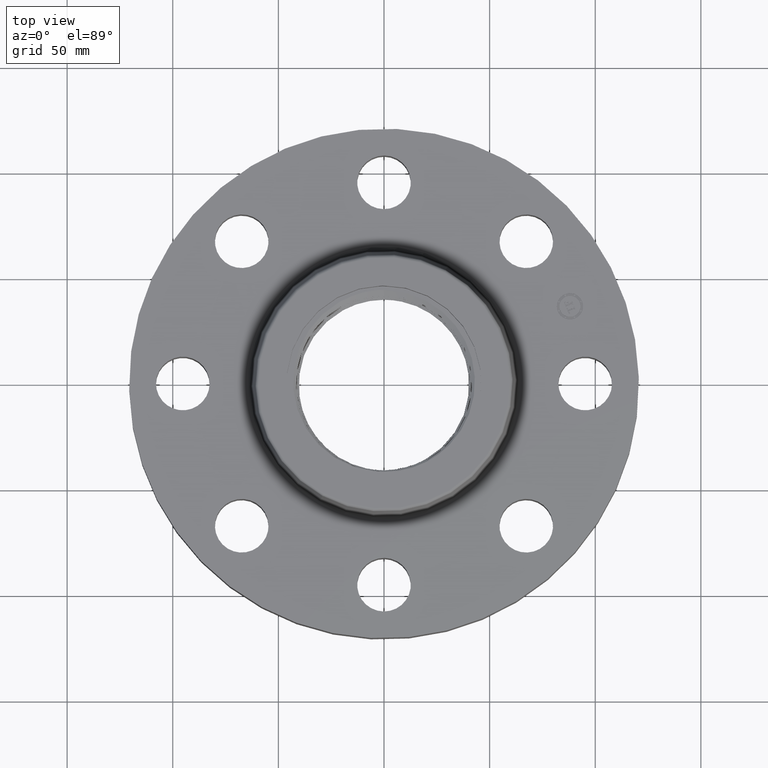
[diagram: clean part render]
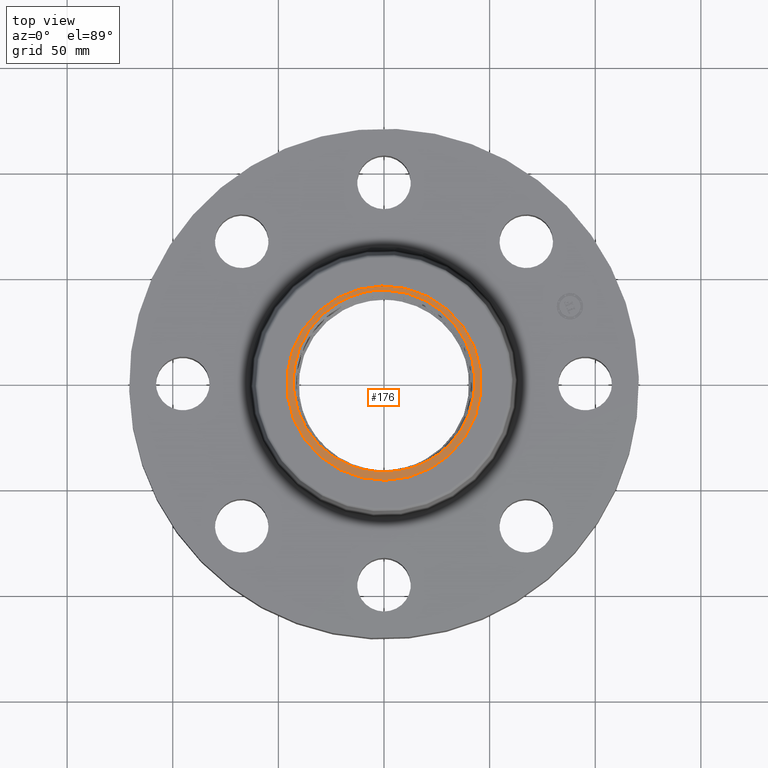
[diagram: same view with one face highlighted and labeled with its STEP entity id]
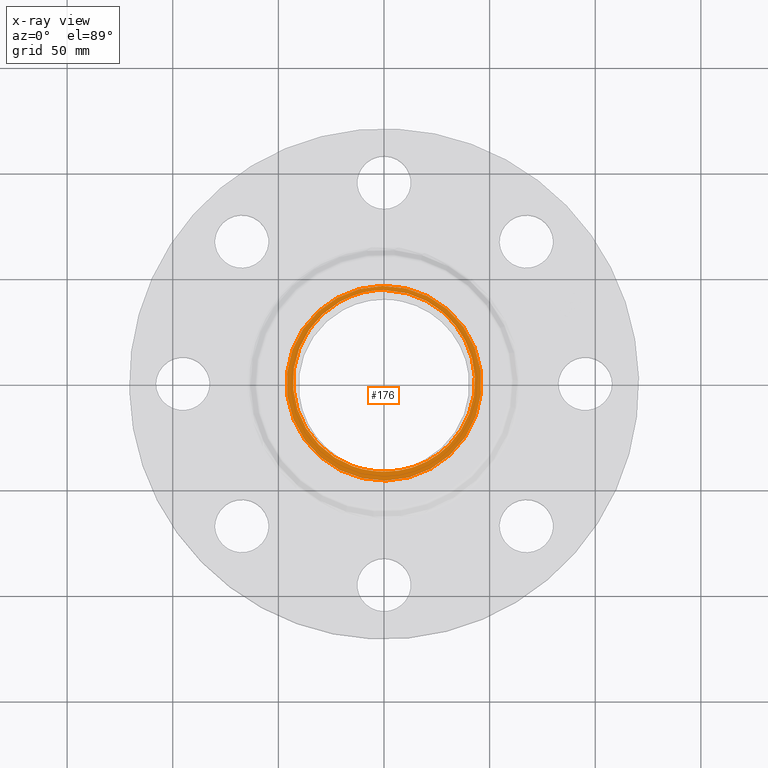
[diagram: x-ray of the same camera — body ghosted, the highlighted face saturated]
A machine part, top view. The second image highlights one B-rep face of the part: STEP entity #176.
The next image is the same camera in x-ray: the body ghosted, the highlighted face saturated — about 0% of this face is hidden behind the body in this view.
In plain terms, the highlighted planar face has unit normal (0, 0, 1).
Its self-contained STEP definition (entity closure, byte-faithful):
#38=AXIS2_PLACEMENT_3D('Plane Axis2P3D',#35,#36,#37) ;
#42=AXIS2_PLACEMENT_3D('Circle Axis2P3D',#40,#41,$) ;
#51=AXIS2_PLACEMENT_3D('Circle Axis2P3D',#49,#50,$) ;
#60=AXIS2_PLACEMENT_3D('Circle Axis2P3D',#58,#59,$) ;
#35=CARTESIAN_POINT('Axis2P3D Location',(7.36069123413E-016,-4.96540691328E-016,1.62000000001)) ;
#40=CARTESIAN_POINT('Axis2P3D Location',(0.,0.,1.62000000001)) ;
#44=CARTESIAN_POINT('Vertex',(-0.87015735257,1.59281234984,1.62000000001)) ;
#46=CARTESIAN_POINT('Vertex',(0.87015735257,-1.59281234984,1.62000000001)) ;
#49=CARTESIAN_POINT('Axis2P3D Location',(0.,0.,1.62000000001)) ;
#58=CARTESIAN_POINT('Axis2P3D Location',(-2.43025197516E-016,-6.99353086378E-018,1.62000000001)) ;
#62=CARTESIAN_POINT('Vertex',(-0.19496198795,-1.63393585747,1.62)) ;
#64=CARTESIAN_POINT('Vertex',(-0.0561135970557,-1.64456919201,1.62000000001)) ;
#68=CARTESIAN_POINT('Control Point',(-0.829470934367,1.51833945289,1.62000000001)) ;
#69=CARTESIAN_POINT('Control Point',(-0.947924557723,1.45061461579,1.62000000001)) ;
#70=CARTESIAN_POINT('Control Point',(-1.0595875807,1.37127483517,1.62000000001)) ;
#71=CARTESIAN_POINT('Control Point',(-1.16292713122,1.28121473761,1.62000000001)) ;
#72=CARTESIAN_POINT('Control Point',(-1.35026486209,1.08205836962,1.62000000001)) ;
#73=CARTESIAN_POINT('Control Point',(-1.4946473119,0.850494288011,1.62000000001)) ;
#74=CARTESIAN_POINT('Control Point',(-1.55503738021,0.728013477139,1.62000000001)) ;
#75=CARTESIAN_POINT('Control Point',(-1.62075184436,0.552652108539,1.62000000001)) ;
#76=CARTESIAN_POINT('Control Point',(-1.66181836953,0.370997993865,1.62000000001)) ;
#77=CARTESIAN_POINT('Control Point',(-1.67116108408,0.321082405756,1.62000000001)) ;
#78=CARTESIAN_POINT('Control Point',(-1.6985592854,0.136954971346,1.62000000001)) ;
#79=CARTESIAN_POINT('Control Point',(-1.70063676271,-0.0496898093333,1.62000000001)) ;
#80=CARTESIAN_POINT('Control Point',(-1.68857808116,-0.184969524677,1.62000000001)) ;
#81=CARTESIAN_POINT('Control Point',(-1.63768868326,-0.451093018365,1.62000000001)) ;
#82=CARTESIAN_POINT('Control Point',(-1.53542122403,-0.701241241832,1.62000000001)) ;
#83=CARTESIAN_POINT('Control Point',(-1.4719383001,-0.820690109152,1.62000000001)) ;
#84=CARTESIAN_POINT('Control Point',(-1.32207399694,-1.04505607616,1.62000000001)) ;
#85=CARTESIAN_POINT('Control Point',(-1.13105167273,-1.23480864744,1.62000000001)) ;
#86=CARTESIAN_POINT('Control Point',(-1.02637062099,-1.31968762362,1.62000000001)) ;
#87=CARTESIAN_POINT('Control Point',(-0.807776384829,-1.46303472352,1.62000000001)) ;
#88=CARTESIAN_POINT('Control Point',(-0.56601243572,-1.56102256941,1.62000000001)) ;
#89=CARTESIAN_POINT('Control Point',(-0.444441861337,-1.59722159542,1.62000000001)) ;
#90=CARTESIAN_POINT('Control Point',(-0.320242420734,-1.62157383624,1.62000000001)) ;
#91=CARTESIAN_POINT('Control Point',(-0.194961989016,-1.63393586934,1.62000000001)) ;
#92=CARTESIAN_POINT('Vertex',(-0.829470934367,1.51833945289,1.62000000001)) ;
#96=CARTESIAN_POINT('Control Point',(-0.13678562732,1.73890278617,1.62000000001)) ;
#97=CARTESIAN_POINT('Control Point',(-0.282853150829,1.72458252226,1.62000000001)) ;
#98=CARTESIAN_POINT('Control Point',(-0.42726701422,1.69491069776,1.62000000001)) ;
#99=CARTESIAN_POINT('Control Point',(-0.567879339145,1.65011614746,1.62000000001)) ;
#100=CARTESIAN_POINT('Control Point',(-0.702571780982,1.5908929489,1.62000000001)) ;
#101=CARTESIAN_POINT('Control Point',(-0.829470934367,1.51833945289,1.62000000001)) ;
#102=CARTESIAN_POINT('Vertex',(-0.13678562732,1.73890278617,1.62000000001)) ;
#106=CARTESIAN_POINT('Control Point',(-0.13678562732,1.73890278617,1.62000000001)) ;
#107=CARTESIAN_POINT('Control Point',(-0.109456901691,1.74057479163,1.62000000001)) ;
#108=CARTESIAN_POINT('Control Point',(-0.0820997627674,1.74171022496,1.62000000001)) ;
#109=CARTESIAN_POINT('Control Point',(-0.0547282599684,1.74230832851,1.62000000001)) ;
#110=CARTESIAN_POINT('Control Point',(-0.027356482558,1.74236889664,1.62000000001)) ;
#111=CARTESIAN_POINT('Control Point',(1.47383328884E-006,1.74189228094,1.62000000001)) ;
#112=CARTESIAN_POINT('Vertex',(1.47383328876E-006,1.74189228094,1.62000000001)) ;
#116=CARTESIAN_POINT('Control Point',(1.47383328852E-006,1.74189228094,1.62000000001)) ;
#117=CARTESIAN_POINT('Control Point',(0.136920630037,1.73950694876,1.62000000001)) ;
#118=CARTESIAN_POINT('Control Point',(0.273493783633,1.72366654291,1.62000000001)) ;
#119=CARTESIAN_POINT('Control Point',(0.40791608178,1.69442465365,1.62000000001)) ;
#120=CARTESIAN_POINT('Control Point',(0.669048518615,1.60992355655,1.62000000001)) ;
#121=CARTESIAN_POINT('Control Point',(0.908110509456,1.47634479306,1.62000000001)) ;
#122=CARTESIAN_POINT('Control Point',(1.02056626932,1.39797639738,1.62000000001)) ;
#123=CARTESIAN_POINT('Control Point',(1.22835452702,1.22021097868,1.62000000001)) ;
#124=CARTESIAN_POINT('Control Point',(1.39698895244,1.00557373108,1.62000000001)) ;
#125=CARTESIAN_POINT('Control Point',(1.47032958991,0.890288341322,1.62000000001)) ;
#126=CARTESIAN_POINT('Control Point',(1.59302963525,0.647002829546,1.62000000001)) ;
#127=CARTESIAN_POINT('Control Point',(1.66539294659,0.384673688532,1.62000000001)) ;
#128=CARTESIAN_POINT('Control Point',(1.68834854345,0.250460646832,1.62000000001)) ;
#129=CARTESIAN_POINT('Control Point',(1.70131672195,0.0641377363091,1.62000000001)) ;
#130=CARTESIAN_POINT('Control Point',(1.68884093795,-0.121274441179,1.62000000001)) ;
#131=CARTESIAN_POINT('Control Point',(1.68355250922,-0.171653829181,1.62000000001)) ;
#132=CARTESIAN_POINT('Control Point',(1.66683566121,-0.28858043342,1.62000000001)) ;
#133=CARTESIAN_POINT('Control Point',(1.63999666548,-0.403586111026,1.62000000001)) ;
#134=CARTESIAN_POINT('Control Point',(1.62139791982,-0.468446937411,1.62000000001)) ;
#135=CARTESIAN_POINT('Control Point',(1.55601180588,-0.659816996201,1.62000000001)) ;
#136=CARTESIAN_POINT('Control Point',(1.46260830856,-0.839719875841,1.62000000001)) ;
#137=CARTESIAN_POINT('Control Point',(1.38856391367,-0.952902958467,1.62000000001)) ;
#138=CARTESIAN_POINT('Control Point',(1.23849429043,-1.13854876627,1.62000000001)) ;
#139=CARTESIAN_POINT('Control Point',(1.058720283,-1.29430962591,1.62000000001)) ;
#140=CARTESIAN_POINT('Control Point',(0.975492430563,-1.3558236727,1.62000000001)) ;
#141=CARTESIAN_POINT('Control Point',(0.887898749646,-1.41061576939,1.62000000001)) ;
#142=CARTESIAN_POINT('Control Point',(0.796675761675,-1.4583093642,1.62000000001)) ;
#143=CARTESIAN_POINT('Vertex',(0.796675761675,-1.4583093642,1.62000000001)) ;
#147=CARTESIAN_POINT('Control Point',(0.796675761675,-1.4583093642,1.62000000001)) ;
#148=CARTESIAN_POINT('Control Point',(0.678982033357,-1.51984250506,1.62000000001)) ;
#149=CARTESIAN_POINT('Control Point',(0.555247140363,-1.56955989782,1.62000000001)) ;
#150=CARTESIAN_POINT('Control Point',(0.42704390767,-1.60665540787,1.62000000001)) ;
#151=CARTESIAN_POINT('Control Point',(0.263572078758,-1.63660367051,1.62000000001)) ;
#152=CARTESIAN_POINT('Control Point',(0.0986082677818,-1.64591803104,1.62000000001)) ;
#153=CARTESIAN_POINT('Control Point',(0.0657336206601,-1.64695259762,1.62000000001)) ;
#154=CARTESIAN_POINT('Control Point',(0.0328543485666,-1.64716671914,1.62000000001)) ;
#155=CARTESIAN_POINT('Control Point',(-2.22400057944E-006,-1.6465611539,1.62000000001)) ;
#156=CARTESIAN_POINT('Vertex',(-2.2240005795E-006,-1.6465611539,1.62000000001)) ;
#160=CARTESIAN_POINT('Control Point',(-2.22400057877E-006,-1.6465611539,1.62000000001)) ;
#161=CARTESIAN_POINT('Control Point',(-0.0112317454558,-1.64635418745,1.62000000001)) ;
#162=CARTESIAN_POINT('Control Point',(-0.022458613418,-1.6460514734,1.62000000001)) ;
#163=CARTESIAN_POINT('Control Point',(-0.0336830463114,-1.6456529925,1.62000000001)) ;
#164=CARTESIAN_POINT('Control Point',(-0.044901305729,-1.64515888972,1.62000000001)) ;
#165=CARTESIAN_POINT('Control Point',(-0.05611359629,-1.64456919341,1.62000000001)) ;
#36=DIRECTION('Axis2P3D Direction',(0.,0.,0.0393700787402)) ;
#37=DIRECTION('Axis2P3D XDirection',(0.0393700787402,0.,0.)) ;
#41=DIRECTION('Axis2P3D Direction',(0.,0.,0.0393700787402)) ;
#50=DIRECTION('Axis2P3D Direction',(0.,0.,0.0393700787402)) ;
#59=DIRECTION('Axis2P3D Direction',(0.,0.,0.0393700787402)) ;
#55=ORIENTED_EDGE('',*,*,#48,.T.) ;
#56=ORIENTED_EDGE('',*,*,#53,.T.) ;
#168=ORIENTED_EDGE('',*,*,#66,.F.) ;
#169=ORIENTED_EDGE('',*,*,#94,.F.) ;
#170=ORIENTED_EDGE('',*,*,#104,.F.) ;
#171=ORIENTED_EDGE('',*,*,#114,.T.) ;
#172=ORIENTED_EDGE('',*,*,#145,.T.) ;
#173=ORIENTED_EDGE('',*,*,#158,.T.) ;
#174=ORIENTED_EDGE('',*,*,#166,.T.) ;
#175=FACE_BOUND('',#167,.T.) ;
#176=ADVANCED_FACE('PartBody',(#57,#175),#39,.T.) ;
#67=B_SPLINE_CURVE_WITH_KNOTS('',5,(#68,#69,#70,#71,#72,#73,#74,#75,#76,#77,#78,#79,#80,#81,#82,#83,#84,#85,#86,#87,#88,#89,#90,#91),.UNSPECIFIED.,.F.,.U.,(6,3,3,3,3,3,3,6),(0.,24.2629937662,48.5284723786,57.6276785456,81.9026466102,106.205437231,130.519330315,153.490077875),.UNSPECIFIED.) ;
#95=B_SPLINE_CURVE_WITH_KNOTS('',5,(#96,#97,#98,#99,#100,#101),.UNSPECIFIED.,.F.,.U.,(6,6),(0.,25.9929015249),.UNSPECIFIED.) ;
#105=B_SPLINE_CURVE_WITH_KNOTS('',5,(#106,#107,#108,#109,#110,#111),.UNSPECIFIED.,.F.,.U.,(6,6),(0.,4.8489899258),.UNSPECIFIED.) ;
#115=B_SPLINE_CURVE_WITH_KNOTS('',5,(#116,#117,#118,#119,#120,#121,#122,#123,#124,#125,#126,#127,#128,#129,#130,#131,#132,#133,#134,#135,#136,#137,#138,#139,#140,#141,#142),.UNSPECIFIED.,.F.,.U.,(6,3,3,3,3,3,3,3,6),(0.,24.2678802305,48.5563585494,72.8556923643,97.1321223853,106.229610214,118.355356603,142.607120718,161.27325888),.UNSPECIFIED.) ;
#146=B_SPLINE_CURVE_WITH_KNOTS('',5,(#147,#148,#149,#150,#151,#152,#153,#154,#155),.UNSPECIFIED.,.F.,.U.,(6,3,6),(0.,24.0826072565,30.0690679559),.UNSPECIFIED.) ;
#159=B_SPLINE_CURVE_WITH_KNOTS('',5,(#160,#161,#162,#163,#164,#165),.UNSPECIFIED.,.F.,.U.,(6,6),(0.,2.04601647746),.UNSPECIFIED.) ;
#43=CIRCLE('generated circle',#42,1.81500000001) ;
#52=CIRCLE('generated circle',#51,1.81500000001) ;
#61=CIRCLE('generated circle',#60,1.64552622679) ;
#48=EDGE_CURVE('',#45,#47,#43,.T.) ;
#53=EDGE_CURVE('',#47,#45,#52,.T.) ;
#66=EDGE_CURVE('',#63,#65,#61,.T.) ;
#94=EDGE_CURVE('',#93,#63,#67,.T.) ;
#104=EDGE_CURVE('',#103,#93,#95,.T.) ;
#114=EDGE_CURVE('',#103,#113,#105,.T.) ;
#145=EDGE_CURVE('',#113,#144,#115,.T.) ;
#158=EDGE_CURVE('',#144,#157,#146,.T.) ;
#166=EDGE_CURVE('',#157,#65,#159,.T.) ;
#54=EDGE_LOOP('',(#55,#56)) ;
#167=EDGE_LOOP('',(#168,#169,#170,#171,#172,#173,#174)) ;
#57=FACE_OUTER_BOUND('',#54,.T.) ;
#39=PLANE('',#38) ;
#45=VERTEX_POINT('',#44) ;
#47=VERTEX_POINT('',#46) ;
#63=VERTEX_POINT('',#62) ;
#65=VERTEX_POINT('',#64) ;
#93=VERTEX_POINT('',#92) ;
#103=VERTEX_POINT('',#102) ;
#113=VERTEX_POINT('',#112) ;
#144=VERTEX_POINT('',#143) ;
#157=VERTEX_POINT('',#156) ;